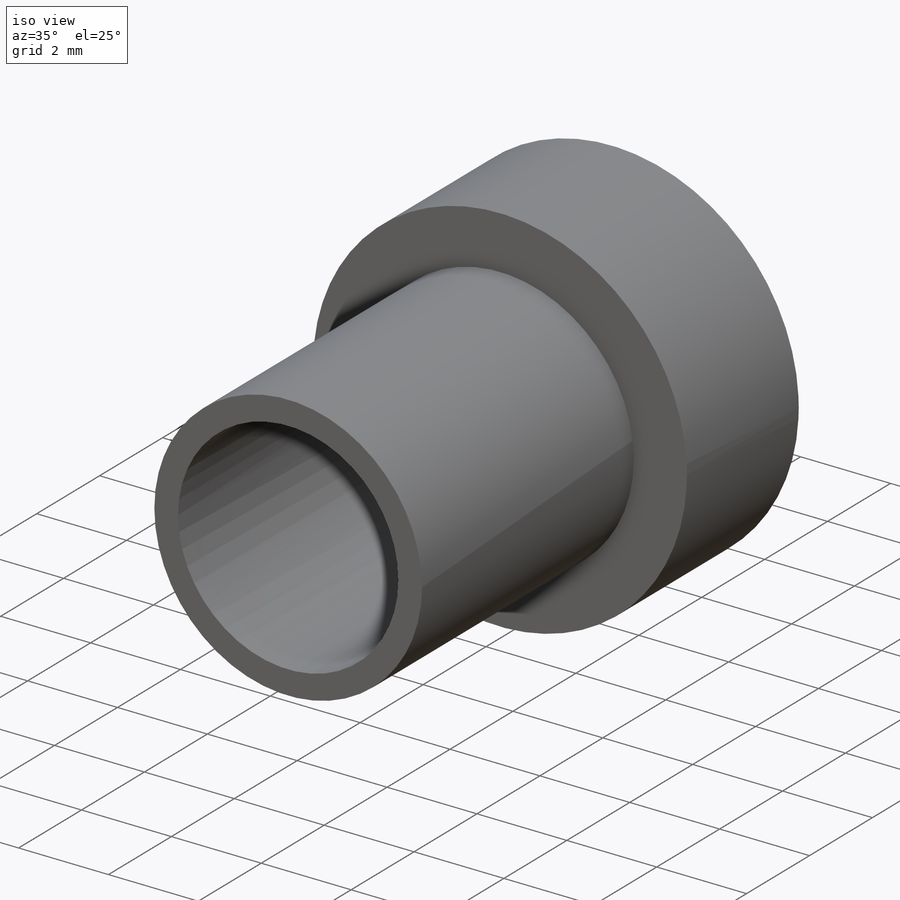
[diagram: iso view]
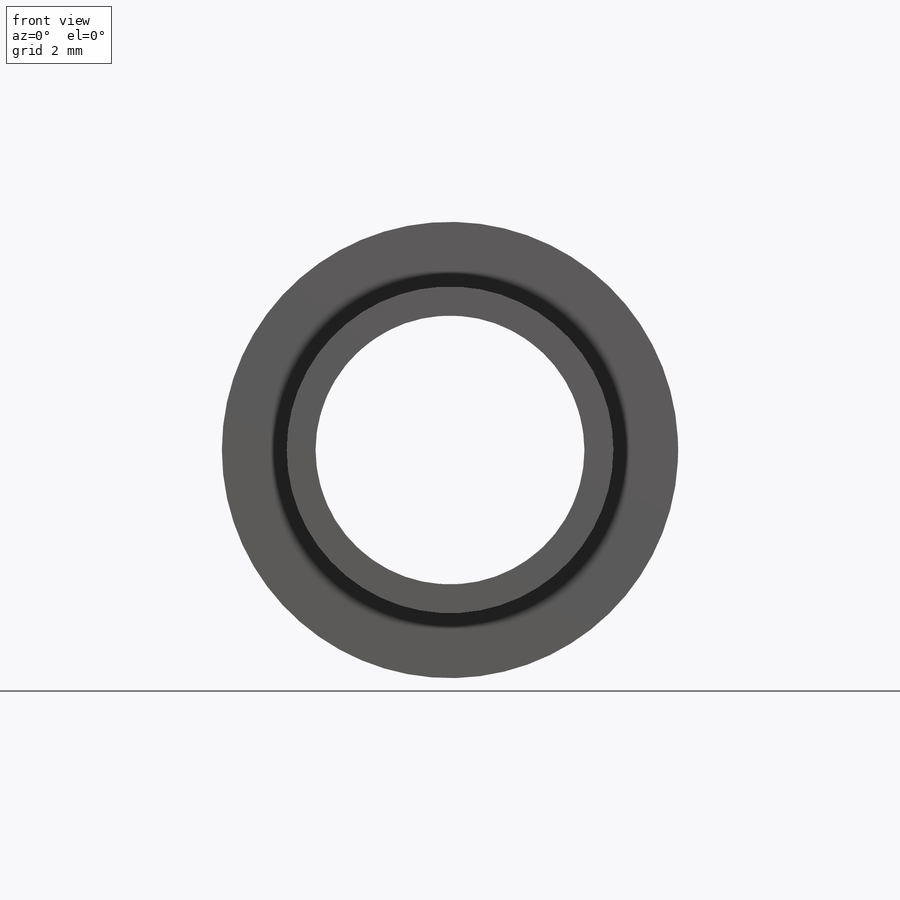
[diagram: front view]
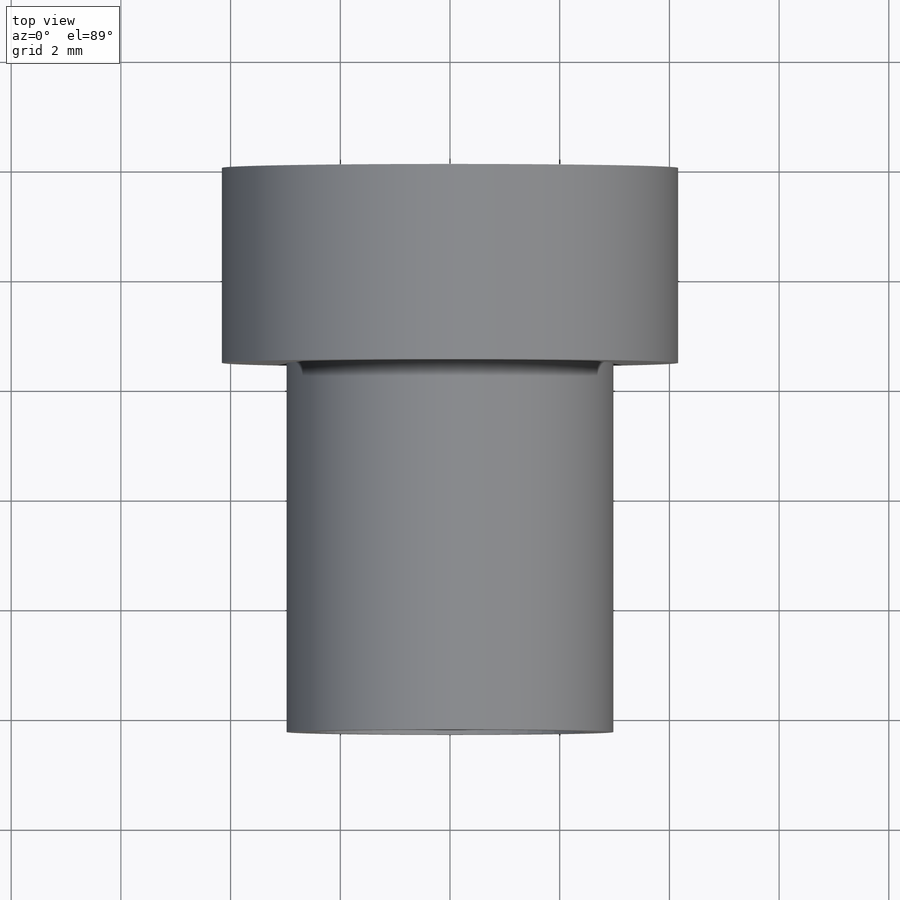
[diagram: top view]
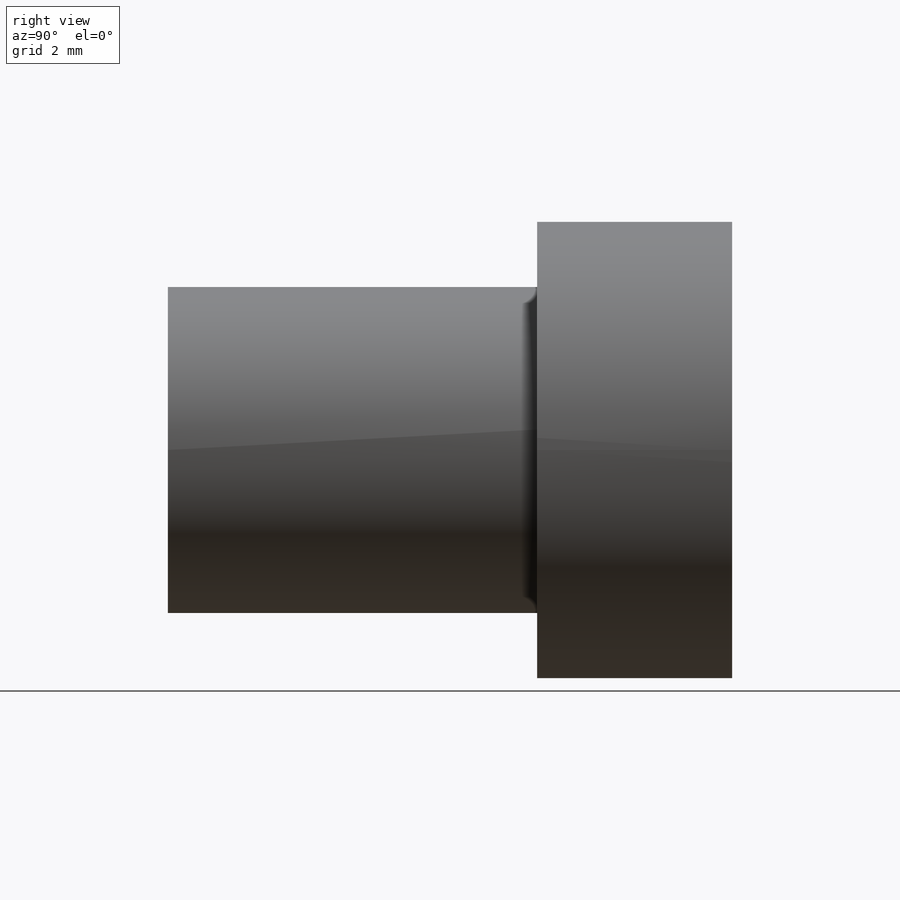
[diagram: right view]
SOLIDWORKS PART (.sldprt)
format: sldprt  version: not decoded by parser v0  size: 262,656 bytes
history: native  units: mm
features: sketch x2, material x1, extrude x1, cut_extrude x1, chamfer x1 (+11 scaffold rows collapsed)
feature tree (17):
  scaffold x11  (default folders/planes/origin — collapsed)
  material  "3003 Alloy"
  sketch  "Sketch1"  dims[D1=4.9022mm D2=8.3185mm]
  extrude  "Boss-Extrude1"  Depth=10.287mm
  sketch  "Sketch2"  dims[D1=5.9563mm]
  cut_extrude  "Cut-Extrude1"  Depth=6.731mm
  chamfer  "Chamfer1"  Distance=1.778mm Angle=37deg
decode coverage: 5 of 5 modeling features carry decoded parameters
note: suppression state not decoded; provenance and decode notes live in map.json
